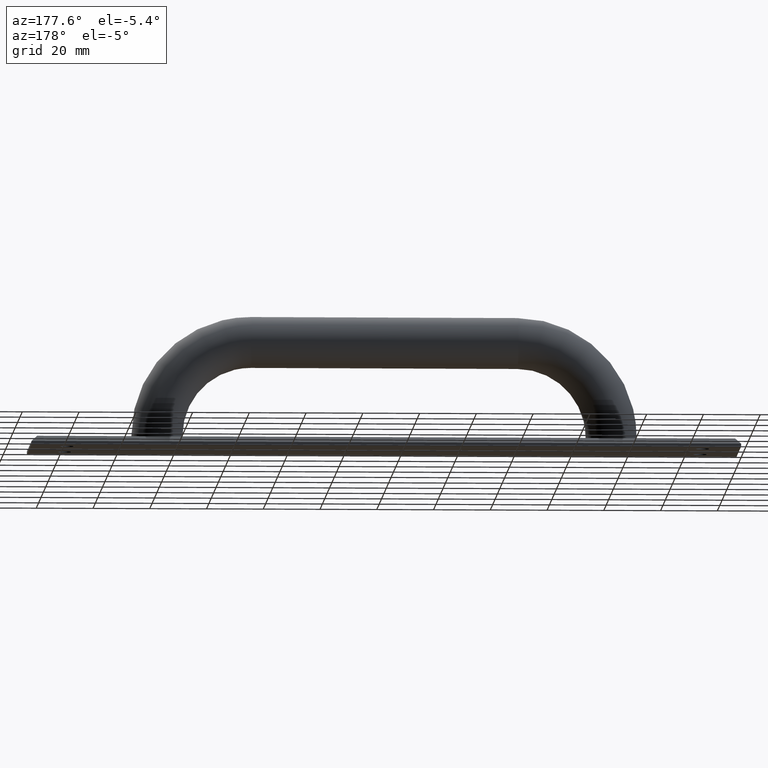
[diagram: clean part render]
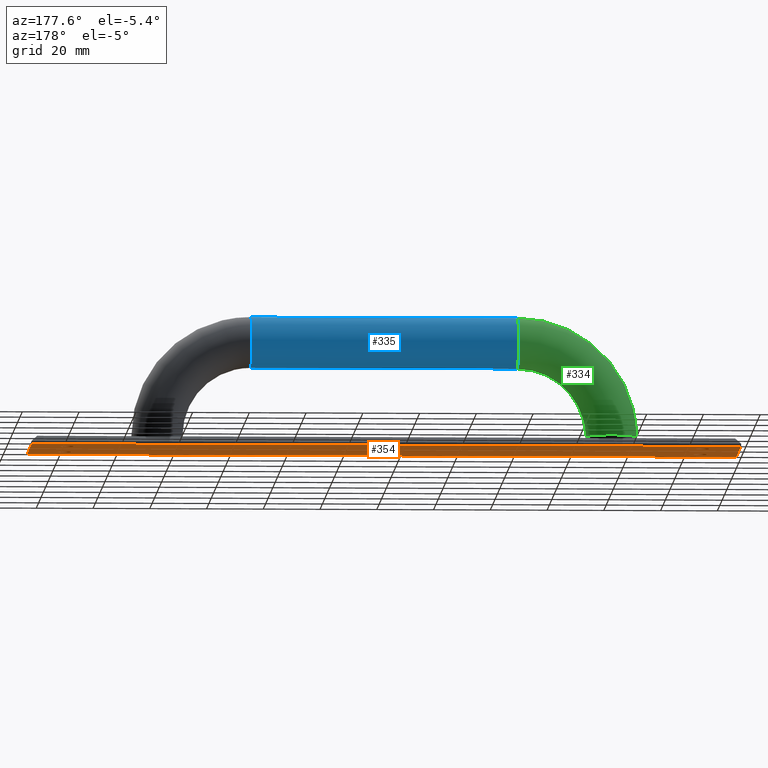
[diagram: same view with three faces highlighted in distinct colors, each labeled with its STEP entity id]
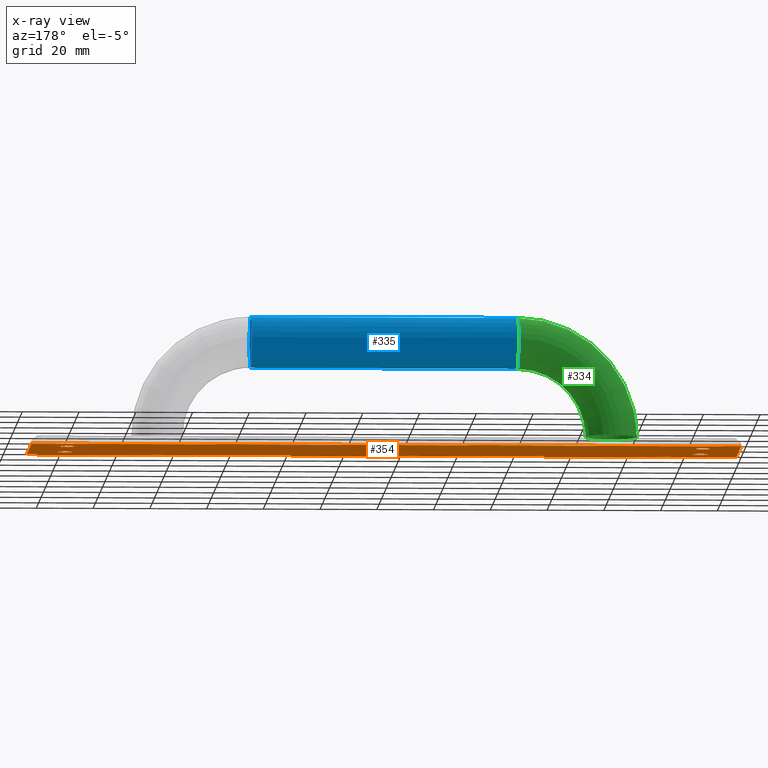
[diagram: x-ray of the same camera — body ghosted, the three highlighted faces saturated]
A machine part, auxiliary view with three faces highlighted in distinct colors.
The next image is the same camera in x-ray (body ghosted, the three faces saturated) — at least one of them is partly hidden behind the body in this view.
Their STEP definitions:

[orange] entity #354 — the highlighted planar face has unit normal (0, 0, 1).
#27=LINE('',#579,#47);
#30=LINE('',#585,#50);
#33=LINE('',#590,#53);
#34=LINE('',#592,#54);
#47=VECTOR('',#484,40.);
#50=VECTOR('',#489,40.);
#53=VECTOR('',#496,250.);
#54=VECTOR('',#499,250.);
#64=PLANE('',#397);
#90=FACE_BOUND('',#159,.T.);
#91=FACE_BOUND('',#160,.T.);
#92=FACE_BOUND('',#161,.T.);
#93=FACE_BOUND('',#162,.T.);
#116=FACE_OUTER_BOUND('',#158,.T.);
#158=EDGE_LOOP('',(#317,#318,#319,#320));
#159=EDGE_LOOP('',(#321));
#160=EDGE_LOOP('',(#322));
#161=EDGE_LOOP('',(#323));
#162=EDGE_LOOP('',(#324));
#171=CIRCLE('',#372,2.5);
#174=CIRCLE('',#377,2.5);
#177=CIRCLE('',#382,2.5);
#180=CIRCLE('',#387,2.5);
#189=VERTEX_POINT('',#526);
#192=VERTEX_POINT('',#534);
#195=VERTEX_POINT('',#542);
#198=VERTEX_POINT('',#550);
#207=VERTEX_POINT('',#576);
#208=VERTEX_POINT('',#578);
#209=VERTEX_POINT('',#582);
#210=VERTEX_POINT('',#584);
#219=EDGE_CURVE('',#189,#189,#171,.T.);
#222=EDGE_CURVE('',#192,#192,#174,.T.);
#225=EDGE_CURVE('',#195,#195,#177,.T.);
#228=EDGE_CURVE('',#198,#198,#180,.T.);
#241=EDGE_CURVE('',#207,#208,#27,.T.);
#244=EDGE_CURVE('',#209,#210,#30,.T.);
#247=EDGE_CURVE('',#208,#209,#33,.T.);
#248=EDGE_CURVE('',#210,#207,#34,.T.);
#317=ORIENTED_EDGE('',*,*,#248,.F.);
#318=ORIENTED_EDGE('',*,*,#244,.F.);
#319=ORIENTED_EDGE('',*,*,#247,.F.);
#320=ORIENTED_EDGE('',*,*,#241,.F.);
#321=ORIENTED_EDGE('',*,*,#219,.T.);
#322=ORIENTED_EDGE('',*,*,#222,.T.);
#323=ORIENTED_EDGE('',*,*,#225,.T.);
#324=ORIENTED_EDGE('',*,*,#228,.T.);
#354=ADVANCED_FACE('',(#116,#90,#91,#92,#93),#64,.F.);
#372=AXIS2_PLACEMENT_3D('',#527,#430,#431);
#377=AXIS2_PLACEMENT_3D('',#535,#440,#441);
#382=AXIS2_PLACEMENT_3D('',#543,#450,#451);
#387=AXIS2_PLACEMENT_3D('',#551,#460,#461);
#397=AXIS2_PLACEMENT_3D('',#593,#500,#501);
#430=DIRECTION('center_axis',(0.,0.,1.));
#431=DIRECTION('ref_axis',(1.,0.,0.));
#440=DIRECTION('center_axis',(0.,0.,1.));
#441=DIRECTION('ref_axis',(1.,0.,0.));
#450=DIRECTION('center_axis',(0.,0.,1.));
#451=DIRECTION('ref_axis',(1.,0.,0.));
#460=DIRECTION('center_axis',(0.,0.,1.));
#461=DIRECTION('ref_axis',(1.,0.,0.));
#484=DIRECTION('',(0.,1.,0.));
#489=DIRECTION('',(3.67548784903353E-16,-1.,0.));
#496=DIRECTION('',(-1.,1.59872115546023E-16,0.));
#499=DIRECTION('',(1.,0.,0.));
#500=DIRECTION('center_axis',(0.,0.,1.));
#501=DIRECTION('ref_axis',(1.,0.,0.));
#526=CARTESIAN_POINT('',(10.5,9.50000000000001,0.));
#527=CARTESIAN_POINT('Origin',(13.,9.50000000000001,0.));
#534=CARTESIAN_POINT('',(10.5,30.5,0.));
#535=CARTESIAN_POINT('Origin',(13.,30.5,0.));
#542=CARTESIAN_POINT('',(234.5,30.5,0.));
#543=CARTESIAN_POINT('Origin',(237.,30.5,0.));
#550=CARTESIAN_POINT('',(234.5,9.50000000000001,0.));
#551=CARTESIAN_POINT('Origin',(237.,9.50000000000001,0.));
#576=CARTESIAN_POINT('',(250.,0.,0.));
#578=CARTESIAN_POINT('',(250.,40.,0.));
#579=CARTESIAN_POINT('',(250.,0.,0.));
#582=CARTESIAN_POINT('',(-1.47019513961341E-14,40.,0.));
#584=CARTESIAN_POINT('',(0.,0.,0.));
#585=CARTESIAN_POINT('',(-1.47019513961341E-14,40.,0.));
#590=CARTESIAN_POINT('',(250.,40.,0.));
#592=CARTESIAN_POINT('',(0.,0.,0.));
#593=CARTESIAN_POINT('Origin',(125.,20.,0.));

[blue] entity #335 — the highlighted cylindrical surface (bore or boss wall) has radius 9 mm, axis along (-1, 0, -0).
#74=FACE_BOUND('',#124,.T.);
#97=FACE_OUTER_BOUND('',#123,.T.);
#123=EDGE_LOOP('',(#255));
#124=EDGE_LOOP('',(#256));
#167=CIRCLE('',#364,9.);
#168=CIRCLE('',#366,9.);
#185=VERTEX_POINT('',#514);
#186=VERTEX_POINT('',#517);
#215=EDGE_CURVE('',#185,#185,#167,.T.);
#216=EDGE_CURVE('',#186,#186,#168,.T.);
#255=ORIENTED_EDGE('',*,*,#215,.T.);
#256=ORIENTED_EDGE('',*,*,#216,.F.);
#327=CYLINDRICAL_SURFACE('',#365,9.);
#335=ADVANCED_FACE('',(#97,#74),#327,.T.);
#364=AXIS2_PLACEMENT_3D('',#515,#414,#415);
#365=AXIS2_PLACEMENT_3D('',#516,#416,#417);
#366=AXIS2_PLACEMENT_3D('',#518,#418,#419);
#414=DIRECTION('center_axis',(1.,0.,-2.52323414687536E-16));
#415=DIRECTION('ref_axis',(-2.52323414687536E-16,0.,-1.));
#416=DIRECTION('center_axis',(-1.,0.,-1.88974131851091E-16));
#417=DIRECTION('ref_axis',(1.88974131851091E-16,0.,-1.));
#418=DIRECTION('center_axis',(1.,0.,-2.52323414687536E-16));
#419=DIRECTION('ref_axis',(-2.52323414687536E-16,0.,-1.));
#514=CARTESIAN_POINT('',(78.,20.,47.));
#515=CARTESIAN_POINT('Origin',(78.,20.,38.));
#516=CARTESIAN_POINT('Origin',(172.,20.,38.));
#517=CARTESIAN_POINT('',(172.,20.,47.));
#518=CARTESIAN_POINT('Origin',(172.,20.,38.));

[green] entity #334 — the highlighted toroidal blend (fillet) surface has major radius 33 mm and minor (blend) radius 9 mm.
#69=TOROIDAL_SURFACE('',#363,33.,9.);
#73=FACE_BOUND('',#122,.T.);
#96=FACE_OUTER_BOUND('',#121,.T.);
#121=EDGE_LOOP('',(#253));
#122=EDGE_LOOP('',(#254));
#163=CIRCLE('',#358,9.);
#167=CIRCLE('',#364,9.);
#181=VERTEX_POINT('',#504);
#185=VERTEX_POINT('',#514);
#211=EDGE_CURVE('',#181,#181,#163,.T.);
#215=EDGE_CURVE('',#185,#185,#167,.T.);
#253=ORIENTED_EDGE('',*,*,#211,.T.);
#254=ORIENTED_EDGE('',*,*,#215,.F.);
#334=ADVANCED_FACE('',(#96,#73),#69,.T.);
#358=AXIS2_PLACEMENT_3D('',#505,#402,#403);
#363=AXIS2_PLACEMENT_3D('',#513,#412,#413);
#364=AXIS2_PLACEMENT_3D('',#515,#414,#415);
#402=DIRECTION('center_axis',(2.74191443960455E-15,0.,1.));
#403=DIRECTION('ref_axis',(1.,0.,-2.74191443960455E-15));
#412=DIRECTION('center_axis',(0.,-1.,0.));
#413=DIRECTION('ref_axis',(0.,0.,-1.));
#414=DIRECTION('center_axis',(1.,0.,-2.52323414687536E-16));
#415=DIRECTION('ref_axis',(-2.52323414687536E-16,0.,-1.));
#504=CARTESIAN_POINT('',(36.,20.,5.00000000000007));
#505=CARTESIAN_POINT('Origin',(45.,20.,5.00000000000004));
#513=CARTESIAN_POINT('Origin',(78.,20.,4.99999999999996));
#514=CARTESIAN_POINT('',(78.,20.,47.));
#515=CARTESIAN_POINT('Origin',(78.,20.,38.));